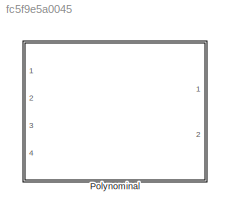
MODEL slx_fc5f9e5a0045
KIND model
CONFIG AbsTol = auto
CONFIG EnableMultiTasking = off
CONFIG FixedStep = 0.001
CONFIG MaxStep = auto
CONFIG MinStep = auto
CONFIG PostLoadFcn = , if any(exist('dsrtsu_mdlpostloadfcn', 'file') == [2, 3, 6]), try dsrtsu_mdlpostloadfcn('Execute', bdroot); catch fprintf('Error in PostLoadFcn (dsrtsu_mdlpostloadfcn) for model "%s":\n %s\n', bdroot, lasterr); end, end, \n
CONFIG RelTol = 1e-3
CONFIG SampleTimeConstraint = Unconstrained
CONFIG Solver = ode1
CONFIG SolverName = ode1
CONFIG StartTime = 0.0
CONFIG StopTime = Inf
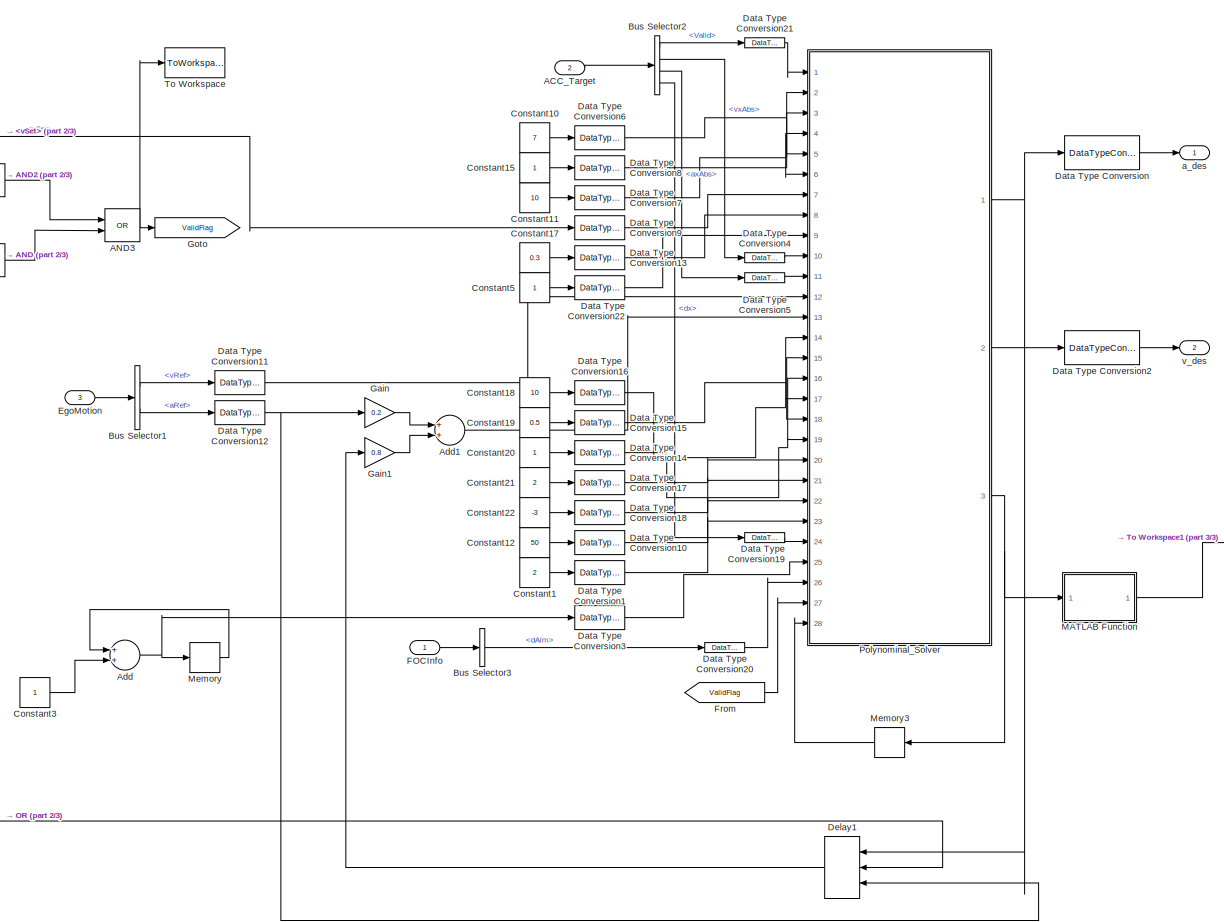
[diagram: Polynominal - part 1/3, center side, full height]
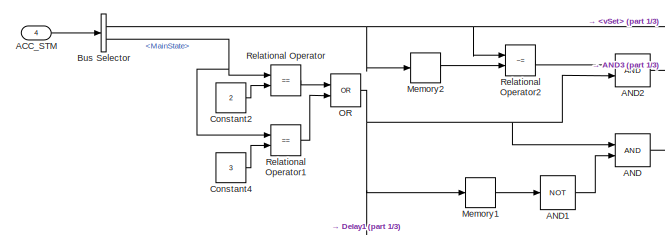
[diagram: Polynominal - part 2/3, top left region]
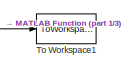
[diagram: Polynominal - part 3/3, middle right region]
BLOCK [SubSystem] Polynominal
  Ports = [4, 2]
  RequestExecContextInheritance = off
BLOCK [Inport] Polynominal/ACC_STM
  IconDisplay = Port number
  Port = 4
BLOCK [Inport] Polynominal/ACC_Target
  IconDisplay = Port number
  Port = 2
BLOCK [Logic] Polynominal/AND
  AllPortsSameDT = off
  OutDataTypeStr = boolean
  Ports = [2, 1]
BLOCK [Logic] Polynominal/AND1
  AllPortsSameDT = off
  Operator = NOT
  OutDataTypeStr = boolean
  Ports = [1, 1]
BLOCK [Logic] Polynominal/AND2
  AllPortsSameDT = off
  OutDataTypeStr = boolean
  Ports = [2, 1]
BLOCK [Logic] Polynominal/AND3
  AllPortsSameDT = off
  Operator = OR
  OutDataTypeStr = boolean
  Ports = [2, 1]
BLOCK [Sum] Polynominal/Add
  InputSameDT = off
  OutDataTypeStr = Inherit: Inherit via internal rule
  Ports = [2, 1]
  SaturateOnIntegerOverflow = off
BLOCK [Sum] Polynominal/Add1
  InputSameDT = off
  OutDataTypeStr = Inherit: Inherit via internal rule
  Ports = [2, 1]
  SaturateOnIntegerOverflow = off
BLOCK [BusSelector] Polynominal/Bus Selector
  OutputAsBus = off
  OutputSignals = vSet,MainState
  Ports = [1, 2]
BLOCK [BusSelector] Polynominal/Bus Selector1
  OutputAsBus = off
  OutputSignals = vRef,aRef
  Ports = [1, 2]
BLOCK [BusSelector] Polynominal/Bus Selector2
  OutputAsBus = off
  OutputSignals = Valid,vxAbs,axAbs,dx
  Ports = [1, 4]
BLOCK [BusSelector] Polynominal/Bus Selector3
  OutputAsBus = off
  OutputSignals = dAim
  Ports = [1, 1]
BLOCK [Constant] Polynominal/Constant1
  OutDataTypeStr = single
  Value = 2
BLOCK [Constant] Polynominal/Constant10
  OutDataTypeStr = single
  Value = 7
BLOCK [Constant] Polynominal/Constant11
  OutDataTypeStr = single
  Value = 10
BLOCK [Constant] Polynominal/Constant12
  OutDataTypeStr = single
  Value = 50
BLOCK [Constant] Polynominal/Constant15
  OutDataTypeStr = single
BLOCK [Constant] Polynominal/Constant17
  OutDataTypeStr = single
  Value = 0.3
BLOCK [Constant] Polynominal/Constant18
  OutDataTypeStr = single
  Value = 10
BLOCK [Constant] Polynominal/Constant19
  OutDataTypeStr = single
  Value = 0.5
BLOCK [Constant] Polynominal/Constant2
  OutDataTypeStr = single
  Value = 2
BLOCK [Constant] Polynominal/Constant20
  OutDataTypeStr = single
BLOCK [Constant] Polynominal/Constant21
  OutDataTypeStr = single
  Value = 2
BLOCK [Constant] Polynominal/Constant22
  OutDataTypeStr = single
  Value = -3
BLOCK [Constant] Polynominal/Constant3
  OutDataTypeStr = single
BLOCK [Constant] Polynominal/Constant4
  OutDataTypeStr = single
  Value = 3
BLOCK [Constant] Polynominal/Constant5
  OutDataTypeStr = single
BLOCK [DataTypeConversion] Polynominal/Data Type Conversion
  OutDataTypeStr = single
  RndMeth = Floor
  SaturateOnIntegerOverflow = off
BLOCK [DataTypeConversion] Polynominal/Data Type Conversion1
  OutDataTypeStr = double
  RndMeth = Floor
  SaturateOnIntegerOverflow = off
BLOCK [DataTypeConversion] Polynominal/Data Type Conversion10
  OutDataTypeStr = double
  RndMeth = Floor
  SaturateOnIntegerOverflow = off
BLOCK [DataTypeConversion] Polynominal/Data Type Conversion11
  OutDataTypeStr = double
  RndMeth = Floor
  SaturateOnIntegerOverflow = off
BLOCK [DataTypeConversion] Polynominal/Data Type Conversion12
  OutDataTypeStr = double
  RndMeth = Floor
  SaturateOnIntegerOverflow = off
BLOCK [DataTypeConversion] Polynominal/Data Type Conversion13
  OutDataTypeStr = double
  RndMeth = Floor
  SaturateOnIntegerOverflow = off
BLOCK [DataTypeConversion] Polynominal/Data Type Conversion14
  OutDataTypeStr = double
  RndMeth = Floor
  SaturateOnIntegerOverflow = off
BLOCK [DataTypeConversion] Polynominal/Data Type Conversion15
  OutDataTypeStr = double
  RndMeth = Floor
  SaturateOnIntegerOverflow = off
BLOCK [DataTypeConversion] Polynominal/Data Type Conversion16
  OutDataTypeStr = double
  RndMeth = Floor
  SaturateOnIntegerOverflow = off
BLOCK [DataTypeConversion] Polynominal/Data Type Conversion17
  OutDataTypeStr = double
  RndMeth = Floor
  SaturateOnIntegerOverflow = off
BLOCK [DataTypeConversion] Polynominal/Data Type Conversion18
  OutDataTypeStr = double
  RndMeth = Floor
  SaturateOnIntegerOverflow = off
BLOCK [DataTypeConversion] Polynominal/Data Type Conversion19
  OutDataTypeStr = double
  RndMeth = Floor
  SaturateOnIntegerOverflow = off
BLOCK [DataTypeConversion] Polynominal/Data Type Conversion2
  OutDataTypeStr = single
  RndMeth = Floor
  SaturateOnIntegerOverflow = off
BLOCK [DataTypeConversion] Polynominal/Data Type Conversion20
  OutDataTypeStr = double
  RndMeth = Floor
  SaturateOnIntegerOverflow = off
BLOCK [DataTypeConversion] Polynominal/Data Type Conversion21
  OutDataTypeStr = double
  RndMeth = Floor
  SaturateOnIntegerOverflow = off
BLOCK [DataTypeConversion] Polynominal/Data Type Conversion22
  OutDataTypeStr = double
  RndMeth = Floor
  SaturateOnIntegerOverflow = off
BLOCK [DataTypeConversion] Polynominal/Data Type Conversion3
  OutDataTypeStr = double
  RndMeth = Floor
  SaturateOnIntegerOverflow = off
BLOCK [DataTypeConversion] Polynominal/Data Type Conversion4
  OutDataTypeStr = double
  RndMeth = Floor
  SaturateOnIntegerOverflow = off
BLOCK [DataTypeConversion] Polynominal/Data Type Conversion5
  OutDataTypeStr = double
  RndMeth = Floor
  SaturateOnIntegerOverflow = off
BLOCK [DataTypeConversion] Polynominal/Data Type Conversion6
  OutDataTypeStr = double
  RndMeth = Floor
  SaturateOnIntegerOverflow = off
BLOCK [DataTypeConversion] Polynominal/Data Type Conversion7
  OutDataTypeStr = double
  RndMeth = Floor
  SaturateOnIntegerOverflow = off
BLOCK [DataTypeConversion] Polynominal/Data Type Conversion8
  OutDataTypeStr = double
  RndMeth = Floor
  SaturateOnIntegerOverflow = off
BLOCK [DataTypeConversion] Polynominal/Data Type Conversion9
  OutDataTypeStr = double
  RndMeth = Floor
  SaturateOnIntegerOverflow = off
BLOCK [Delay] Polynominal/Delay1
  DelayLength = 1
  ExternalReset = Rising
  InitialConditionSource = Input port
  InputPortMap = u0,r5,p4
  Ports = [3, 1]
BLOCK [Inport] Polynominal/EgoMotion
  IconDisplay = Port number
  Port = 3
BLOCK [Inport] Polynominal/FOCInfo
  IconDisplay = Port number
BLOCK [From] Polynominal/From
  GotoTag = ValidFlag
BLOCK [Gain] Polynominal/Gain
  Gain = 0.2
  OutDataTypeStr = Inherit: Inherit via internal rule
  ParamDataTypeStr = Inherit: Inherit via internal rule
  SaturateOnIntegerOverflow = off
BLOCK [Gain] Polynominal/Gain1
  Gain = 0.8
  OutDataTypeStr = Inherit: Inherit via internal rule
  ParamDataTypeStr = Inherit: Inherit via internal rule
  SaturateOnIntegerOverflow = off
BLOCK [Goto] Polynominal/Goto
  GotoTag = ValidFlag
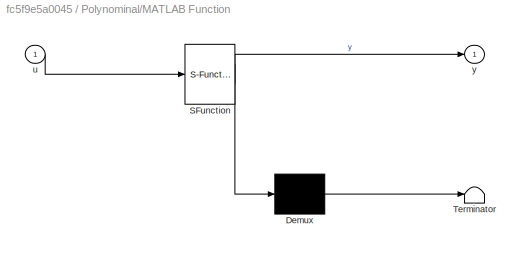
BLOCK [SubSystem] Polynominal/MATLAB Function
  ErrorFcn = Stateflow.Translate.translate
  PermitHierarchicalResolution = ExplicitOnly
  Ports = [1, 1]
  RequestExecContextInheritance = off
  SFBlockType = MATLAB Function
  TreatAsAtomicUnit = on
BLOCK [Demux] Polynominal/MATLAB Function/ Demux 
  Outputs = 1
  Ports = [1, 1]
BLOCK [S-Function] Polynominal/MATLAB Function/ SFunction 
  EnableBusSupport = off
  FunctionName = sf_sfun
  PortCounts = [1 2]
  Ports = [1, 2]
  SFcnIsStateOwnerBlock = off
  SFunctionDeploymentMode = off
  Tag = Stateflow S-Function 6
BLOCK [Terminator] Polynominal/MATLAB Function/ Terminator 
BLOCK [Inport] Polynominal/MATLAB Function/u
  IconDisplay = Port number
BLOCK [Outport] Polynominal/MATLAB Function/y
  IconDisplay = Port number
  VectorParamsAs1DForOutWhenUnconnected = off
BLOCK [Memory] Polynominal/Memory
BLOCK [Memory] Polynominal/Memory1
BLOCK [Memory] Polynominal/Memory2
BLOCK [Memory] Polynominal/Memory3
  InitialCondition = zeros(1,12)
BLOCK [Logic] Polynominal/OR
  AllPortsSameDT = off
  Operator = OR
  OutDataTypeStr = boolean
  Ports = [2, 1]
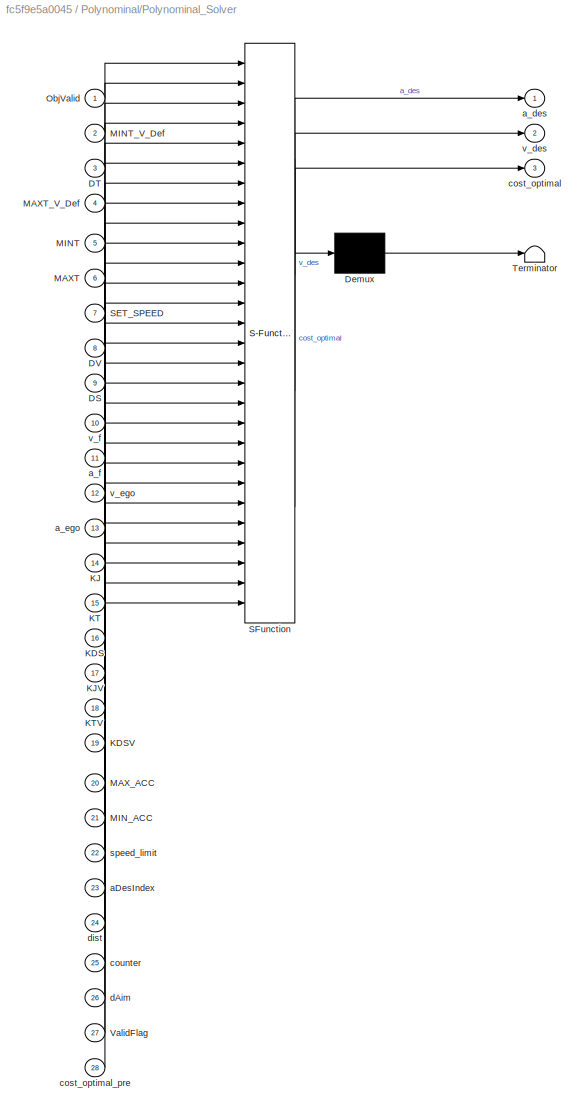
BLOCK [SubSystem] Polynominal/Polynominal_Solver
  ErrorFcn = Stateflow.Translate.translate
  PermitHierarchicalResolution = ExplicitOnly
  Ports = [28, 3]
  RequestExecContextInheritance = off
  SFBlockType = MATLAB Function
  TreatAsAtomicUnit = on
BLOCK [Demux] Polynominal/Polynominal_Solver/ Demux 
  Outputs = 1
  Ports = [1, 1]
BLOCK [S-Function] Polynominal/Polynominal_Solver/ SFunction 
  EnableBusSupport = off
  FunctionName = sf_sfun
  PortCounts = [28 4]
  Ports = [28, 4]
  SFcnIsStateOwnerBlock = off
  SFunctionDeploymentMode = off
  Tag = Stateflow S-Function 3
BLOCK [Terminator] Polynominal/Polynominal_Solver/ Terminator 
BLOCK [Inport] Polynominal/Polynominal_Solver/DS
  IconDisplay = Port number
  Port = 9
BLOCK [Inport] Polynominal/Polynominal_Solver/DT
  IconDisplay = Port number
  Port = 3
BLOCK [Inport] Polynominal/Polynominal_Solver/DV
  IconDisplay = Port number
  Port = 8
BLOCK [Inport] Polynominal/Polynominal_Solver/KDS
  IconDisplay = Port number
  Port = 16
BLOCK [Inport] Polynominal/Polynominal_Solver/KDSV
  IconDisplay = Port number
  Port = 19
BLOCK [Inport] Polynominal/Polynominal_Solver/KJ
  IconDisplay = Port number
  Port = 14
BLOCK [Inport] Polynominal/Polynominal_Solver/KJV
  IconDisplay = Port number
  Port = 17
BLOCK [Inport] Polynominal/Polynominal_Solver/KT
  IconDisplay = Port number
  Port = 15
BLOCK [Inport] Polynominal/Polynominal_Solver/KTV
  IconDisplay = Port number
  Port = 18
BLOCK [Inport] Polynominal/Polynominal_Solver/MAXT
  IconDisplay = Port number
  Port = 6
BLOCK [Inport] Polynominal/Polynominal_Solver/MAXT_V_Def
  IconDisplay = Port number
  Port = 4
BLOCK [Inport] Polynominal/Polynominal_Solver/MAX_ACC
  IconDisplay = Port number
  Port = 20
BLOCK [Inport] Polynominal/Polynominal_Solver/MINT
  IconDisplay = Port number
  Port = 5
BLOCK [Inport] Polynominal/Polynominal_Solver/MINT_V_Def
  IconDisplay = Port number
  Port = 2
BLOCK [Inport] Polynominal/Polynominal_Solver/MIN_ACC
  IconDisplay = Port number
  Port = 21
BLOCK [Inport] Polynominal/Polynominal_Solver/ObjValid
  IconDisplay = Port number
BLOCK [Inport] Polynominal/Polynominal_Solver/SET_SPEED
  IconDisplay = Port number
  Port = 7
BLOCK [Inport] Polynominal/Polynominal_Solver/ValidFlag
  IconDisplay = Port number
  Port = 27
BLOCK [Inport] Polynominal/Polynominal_Solver/aDesIndex
  IconDisplay = Port number
  Port = 23
BLOCK [Outport] Polynominal/Polynominal_Solver/a_des
  IconDisplay = Port number
  VectorParamsAs1DForOutWhenUnconnected = off
BLOCK [Inport] Polynominal/Polynominal_Solver/a_ego
  IconDisplay = Port number
  Port = 13
BLOCK [Inport] Polynominal/Polynominal_Solver/a_f
  IconDisplay = Port number
  Port = 11
BLOCK [Outport] Polynominal/Polynominal_Solver/cost_optimal
  IconDisplay = Port number
  Port = 3
  VectorParamsAs1DForOutWhenUnconnected = off
BLOCK [Inport] Polynominal/Polynominal_Solver/cost_optimal_pre
  IconDisplay = Port number
  Port = 28
BLOCK [Inport] Polynominal/Polynominal_Solver/counter
  IconDisplay = Port number
  Port = 25
BLOCK [Inport] Polynominal/Polynominal_Solver/dAim
  IconDisplay = Port number
  Port = 26
BLOCK [Inport] Polynominal/Polynominal_Solver/dist
  IconDisplay = Port number
  Port = 24
BLOCK [Inport] Polynominal/Polynominal_Solver/speed_limit
  IconDisplay = Port number
  Port = 22
BLOCK [Outport] Polynominal/Polynominal_Solver/v_des
  IconDisplay = Port number
  Port = 2
  VectorParamsAs1DForOutWhenUnconnected = off
BLOCK [Inport] Polynominal/Polynominal_Solver/v_ego
  IconDisplay = Port number
  Port = 12
BLOCK [Inport] Polynominal/Polynominal_Solver/v_f
  IconDisplay = Port number
  Port = 10
BLOCK [RelationalOperator] Polynominal/Relational Operator
  InputSameDT = off
  Operator = ==
  OutDataTypeStr = boolean
  Ports = [2, 1]
  RndMeth = Simplest
BLOCK [RelationalOperator] Polynominal/Relational Operator1
  InputSameDT = off
  Operator = ==
  OutDataTypeStr = boolean
  Ports = [2, 1]
  RndMeth = Simplest
BLOCK [RelationalOperator] Polynominal/Relational Operator2
  InputSameDT = off
  Operator = ~=
  OutDataTypeStr = boolean
  Ports = [2, 1]
  RndMeth = Simplest
BLOCK [ToWorkspace] Polynominal/To Workspace
  FixptAsFi = on
  MaxDataPoints = inf
  Ports = [1]
  SampleTime = -1
  SaveFormat = Timeseries
  VariableName = ValidFlag
BLOCK [ToWorkspace] Polynominal/To Workspace1
  FixptAsFi = on
  MaxDataPoints = inf
  Ports = [1]
  SampleTime = -1
  SaveFormat = Timeseries
  VariableName = Te
BLOCK [Outport] Polynominal/a_des
  IconDisplay = Port number
  VectorParamsAs1DForOutWhenUnconnected = off
BLOCK [Outport] Polynominal/v_des
  IconDisplay = Port number
  Port = 2
  VectorParamsAs1DForOutWhenUnconnected = off
LINE Polynominal/ACC_STM:1 -> Polynominal/Bus Selector:1
LINE Polynominal/ACC_Target:1 -> Polynominal/Bus Selector2:1
LINE Polynominal/AND1:1 -> Polynominal/AND:2
LINE Polynominal/AND2:1 -> Polynominal/AND3:1
NET Polynominal/AND3:1 -> Polynominal/Goto:1, Polynominal/To Workspace:1
LINE Polynominal/AND:1 -> Polynominal/AND3:2
LINE Polynominal/Add1:1 -> Polynominal/Polynominal_Solver:13
NET Polynominal/Add:1 -> Polynominal/Data Type Conversion3:1, Polynominal/Memory:1
LINE Polynominal/Bus Selector1:1 -> Polynominal/Data Type Conversion11:1
LINE Polynominal/Bus Selector1:2 -> Polynominal/Data Type Conversion12:1
LINE Polynominal/Bus Selector2:1 -> Polynominal/Data Type Conversion21:1
LINE Polynominal/Bus Selector2:2 -> Polynominal/Data Type Conversion4:1
LINE Polynominal/Bus Selector2:3 -> Polynominal/Data Type Conversion5:1
LINE Polynominal/Bus Selector2:4 -> Polynominal/Data Type Conversion19:1
LINE Polynominal/Bus Selector3:1 -> Polynominal/Data Type Conversion20:1
NET Polynominal/Bus Selector:1 -> Polynominal/Data Type Conversion9:1, Polynominal/Memory2:1, Polynominal/Relational Operator2:1
NET Polynominal/Bus Selector:2 -> Polynominal/Relational Operator1:1, Polynominal/Relational Operator:1
LINE Polynominal/Constant10:1 -> Polynominal/Data Type Conversion6:1
LINE Polynominal/Constant11:1 -> Polynominal/Data Type Conversion7:1
LINE Polynominal/Constant12:1 -> Polynominal/Data Type Conversion10:1
LINE Polynominal/Constant15:1 -> Polynominal/Data Type Conversion8:1
LINE Polynominal/Constant17:1 -> Polynominal/Data Type Conversion13:1
LINE Polynominal/Constant18:1 -> Polynominal/Data Type Conversion16:1
LINE Polynominal/Constant19:1 -> Polynominal/Data Type Conversion15:1
LINE Polynominal/Constant1:1 -> Polynominal/Data Type Conversion1:1
LINE Polynominal/Constant20:1 -> Polynominal/Data Type Conversion14:1
LINE Polynominal/Constant21:1 -> Polynominal/Data Type Conversion17:1
LINE Polynominal/Constant22:1 -> Polynominal/Data Type Conversion18:1
LINE Polynominal/Constant2:1 -> Polynominal/Relational Operator:2
LINE Polynominal/Constant3:1 -> Polynominal/Add:2
LINE Polynominal/Constant4:1 -> Polynominal/Relational Operator1:2
LINE Polynominal/Constant5:1 -> Polynominal/Data Type Conversion22:1
LINE Polynominal/Data Type Conversion10:1 -> Polynominal/Polynominal_Solver:22
LINE Polynominal/Data Type Conversion11:1 -> Polynominal/Polynominal_Solver:12
NET Polynominal/Data Type Conversion12:1 -> Polynominal/Delay1:3, Polynominal/Gain:1
LINE Polynominal/Data Type Conversion13:1 -> Polynominal/Polynominal_Solver:8
NET Polynominal/Data Type Conversion14:1 -> Polynominal/Polynominal_Solver:16, Polynominal/Polynominal_Solver:19
NET Polynominal/Data Type Conversion15:1 -> Polynominal/Polynominal_Solver:15, Polynominal/Polynominal_Solver:18
NET Polynominal/Data Type Conversion16:1 -> Polynominal/Polynominal_Solver:14, Polynominal/Polynominal_Solver:17
LINE Polynominal/Data Type Conversion17:1 -> Polynominal/Polynominal_Solver:20
LINE Polynominal/Data Type Conversion18:1 -> Polynominal/Polynominal_Solver:21
LINE Polynominal/Data Type Conversion19:1 -> Polynominal/Polynominal_Solver:24
LINE Polynominal/Data Type Conversion1:1 -> Polynominal/Polynominal_Solver:23
LINE Polynominal/Data Type Conversion20:1 -> Polynominal/Polynominal_Solver:26
LINE Polynominal/Data Type Conversion21:1 -> Polynominal/Polynominal_Solver:1
LINE Polynominal/Data Type Conversion22:1 -> Polynominal/Polynominal_Solver:9
LINE Polynominal/Data Type Conversion2:1 -> Polynominal/v_des:1
LINE Polynominal/Data Type Conversion3:1 -> Polynominal/Polynominal_Solver:25
LINE Polynominal/Data Type Conversion4:1 -> Polynominal/Polynominal_Solver:10
LINE Polynominal/Data Type Conversion5:1 -> Polynominal/Polynominal_Solver:11
NET Polynominal/Data Type Conversion6:1 -> Polynominal/Polynominal_Solver:2, Polynominal/Polynominal_Solver:5
NET Polynominal/Data Type Conversion7:1 -> Polynominal/Polynominal_Solver:4, Polynominal/Polynominal_Solver:6
LINE Polynominal/Data Type Conversion8:1 -> Polynominal/Polynominal_Solver:3
LINE Polynominal/Data Type Conversion9:1 -> Polynominal/Polynominal_Solver:7
LINE Polynominal/Data Type Conversion:1 -> Polynominal/a_des:1
LINE Polynominal/Delay1:1 -> Polynominal/Gain1:1
LINE Polynominal/EgoMotion:1 -> Polynominal/Bus Selector1:1
LINE Polynominal/FOCInfo:1 -> Polynominal/Bus Selector3:1
LINE Polynominal/From:1 -> Polynominal/Polynominal_Solver:27
LINE Polynominal/Gain1:1 -> Polynominal/Add1:2
LINE Polynominal/Gain:1 -> Polynominal/Add1:1
LINE Polynominal/MATLAB Function:1 -> Polynominal/To Workspace1:1
LINE Polynominal/Memory1:1 -> Polynominal/AND1:1
LINE Polynominal/Memory2:1 -> Polynominal/Relational Operator2:2
LINE Polynominal/Memory3:1 -> Polynominal/Polynominal_Solver:28
LINE Polynominal/Memory:1 -> Polynominal/Add:1
NET Polynominal/OR:1 -> Polynominal/AND2:2, Polynominal/AND:1, Polynominal/Delay1:2, Polynominal/Memory1:1
NET Polynominal/Polynominal_Solver:1 -> Polynominal/Data Type Conversion:1, Polynominal/Delay1:1
LINE Polynominal/Polynominal_Solver:2 -> Polynominal/Data Type Conversion2:1
NET Polynominal/Polynominal_Solver:3 -> Polynominal/MATLAB Function:1, Polynominal/Memory3:1
LINE Polynominal/Relational Operator1:1 -> Polynominal/OR:2
LINE Polynominal/Relational Operator2:1 -> Polynominal/AND2:1
LINE Polynominal/Relational Operator:1 -> Polynominal/OR:1
note: NET lines group one-source signal fan-out (src -> all destinations, sorted); 1:1 wires keep LINE
CHART Polynominal/Polynominal_Solver states=1 transitions=1
  STATE_LABEL 'eML_blk_kernel()'
  STATE_LABEL 'SCRIPT:\nfunction [a_des,v_des,cost_optimal] = ACC_PLANNING(ObjValid, MINT_V_Def,DT,MAXT_V_Def, MINT,MAXT,SET_SPEED,DV,DS,v_f,a_f,v_ego,a_ego,KJ,KT,KDS,KJV, KTV, KDSV,MAX_ACC, MIN_ACC,speed_limit,aDesIndex,...\n    dist,counter, dAim,ValidFlag, cost_optimal_pre)\n        breakTrig = 0;\n        s_of_t = zeros(200,1);\n        v_of_t = zeros(200,1);\n        a_of_t = zeros(200,1);\n        t_data = zeros(...<+3608ch>'
CHART Polynominal/MATLAB Function states=1 transitions=1
  STATE_LABEL 'eML_blk_kernel()'
  STATE_LABEL 'SCRIPT:\nfunction y = fcn(u)\n\ny = u(2);\n'
